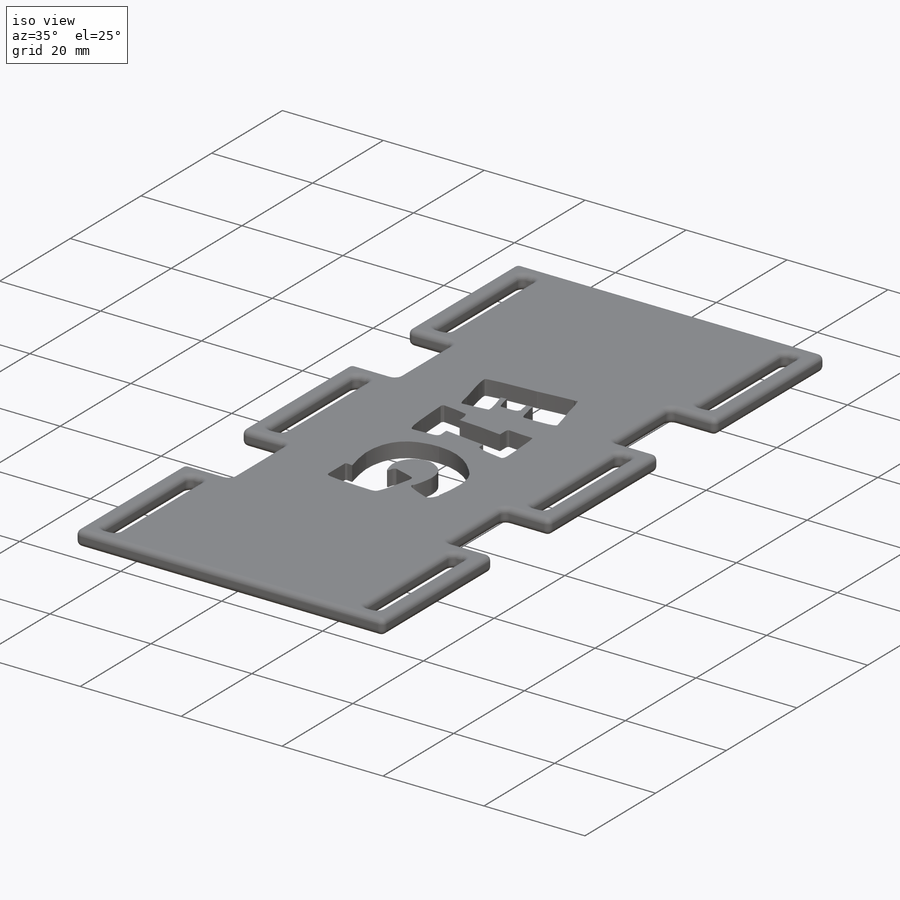
[diagram: iso view]
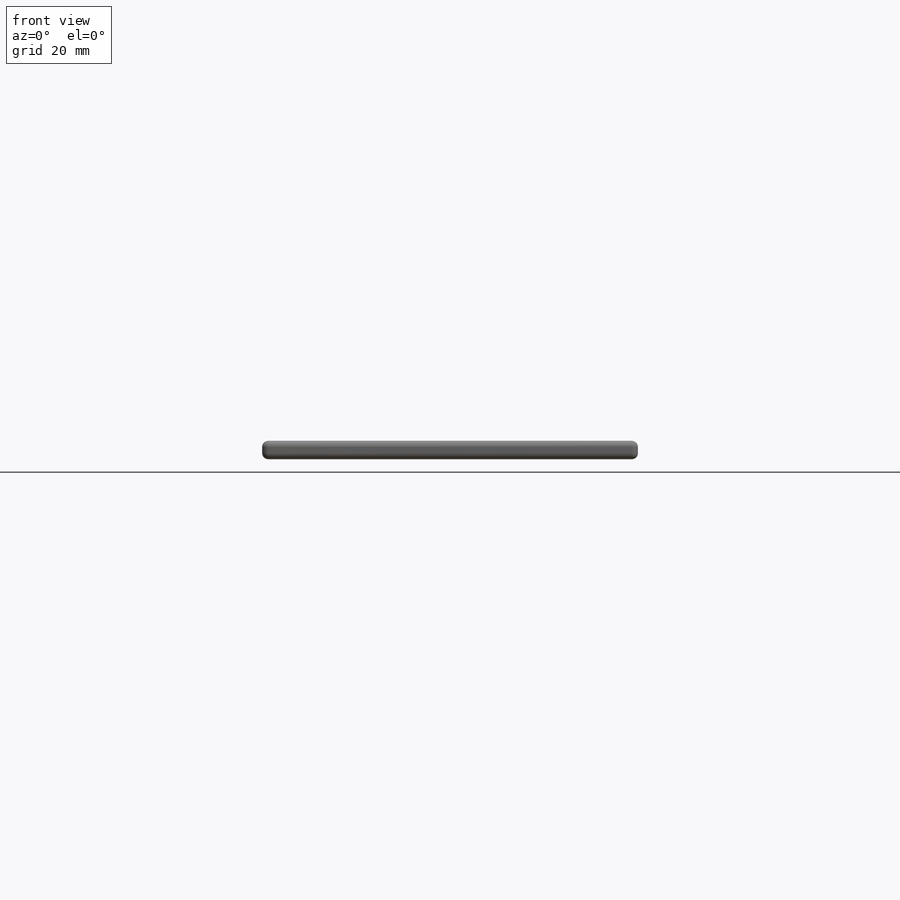
[diagram: front view]
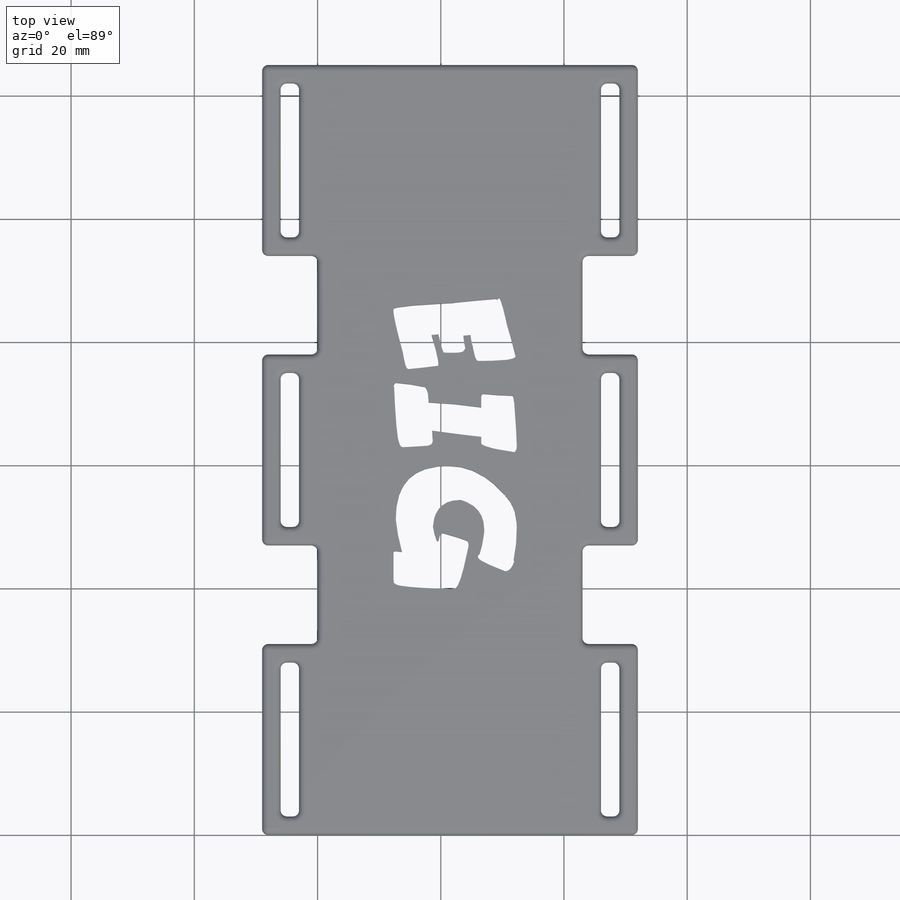
[diagram: top view]
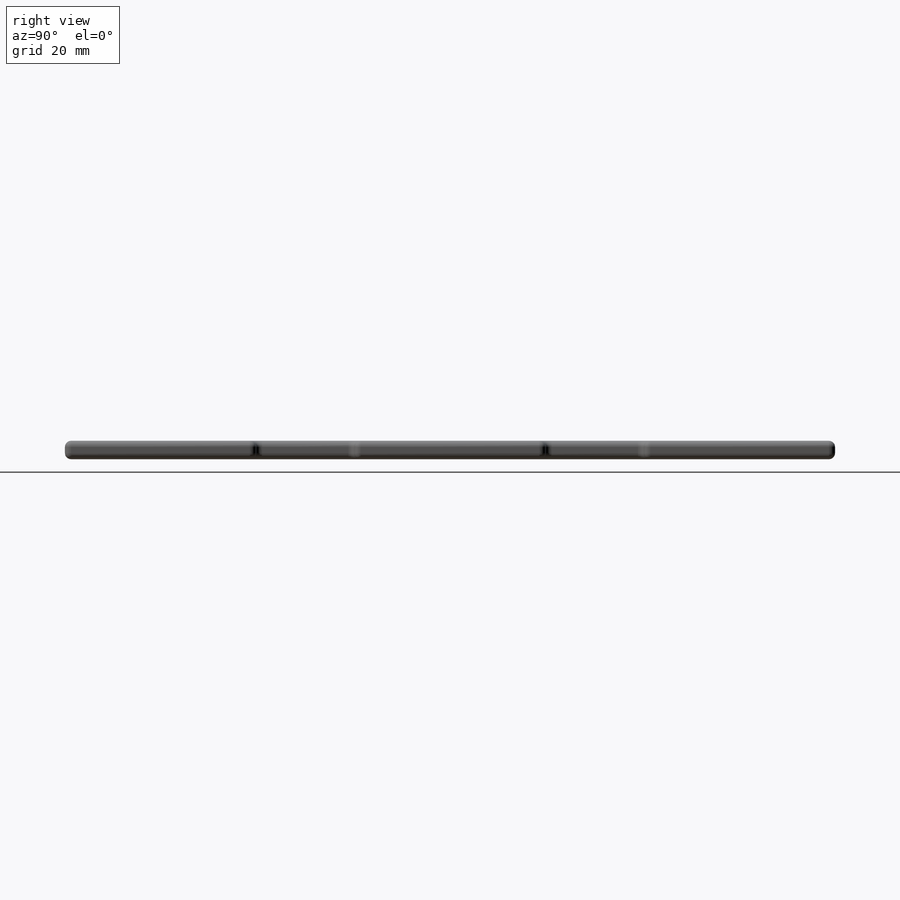
[diagram: right view]
SOLIDWORKS PART (.sldprt)
format: sldprt  version: not decoded by parser v0  size: 765,440 bytes
history: native  units: mm
features: sketch x4, extrude x2, material x1, fillet x1, cut_extrude x1 (+13 scaffold rows collapsed)
feature tree (22):
  scaffold x13  (default folders/planes/origin — collapsed)
  material  "Material <not specified>"
  sketch  "Sketch1"  dims[D1=125.0mm]
  extrude  "Boss-Extrude2"  Depth=3mm
  sketch  "Sketch3"  dims[D1=25.0mm D2=25.0mm D3=3.0mm D4=3.0mm D5=3.0mm D6=3.0mm D7=3.0mm D8=3.0mm D9=3.0mm D10=3.0mm D11=3.0mm D12=3.0mm D13=3.0mm D14=3.0mm D15=25.0mm D16=3.0mm D17=3.0mm D18=3.0mm D19=3.0mm D20=3.0mm D21=3.0mm D22=3.0mm D23=25.0mm D24=3.0mm D25=25.0mm D26=3.0mm D27=3.0mm D28=3.0mm D29=3.0mm D30=3.0mm D31=3.0mm D32=3.0mm D33=3.0mm D34=3.0mm D35=3.0mm D36=25.0mm D37=16.0mm D38=16.0mm D39=16.0mm D40=16.0mm]
  extrude  "Boss-Extrude3"  Depth=3mm
  fillet  "Fillet1"  Radius=1mm
  sketch  "Sketch5"
  sketch  "Sketch4"
  cut_extrude  "Cut-Extrude1"  Depth=3mm
decode coverage: 6 of 8 modeling features carry decoded parameters
note: suppression state not decoded; provenance and decode notes live in map.json
